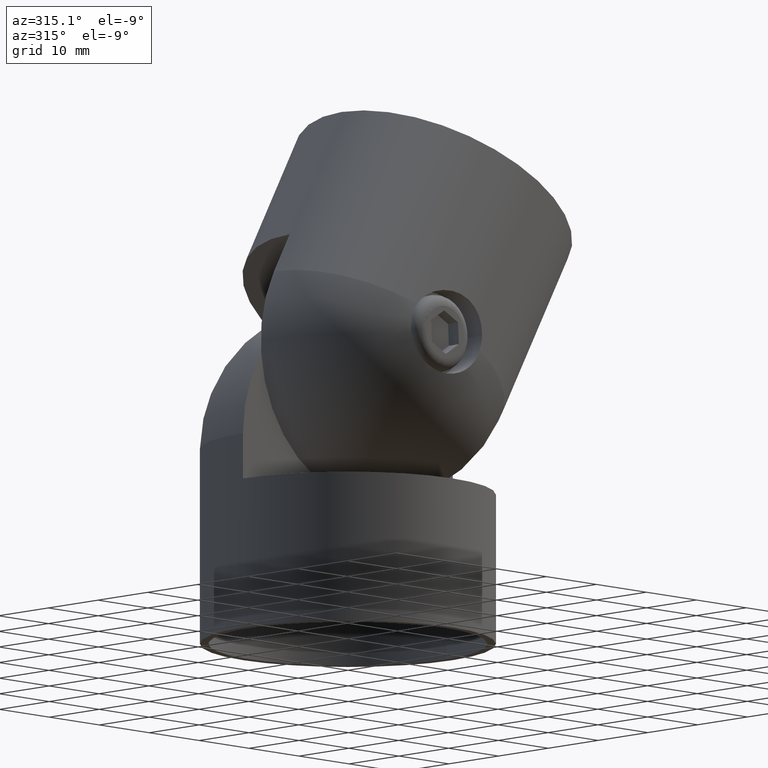
[diagram: clean part render]
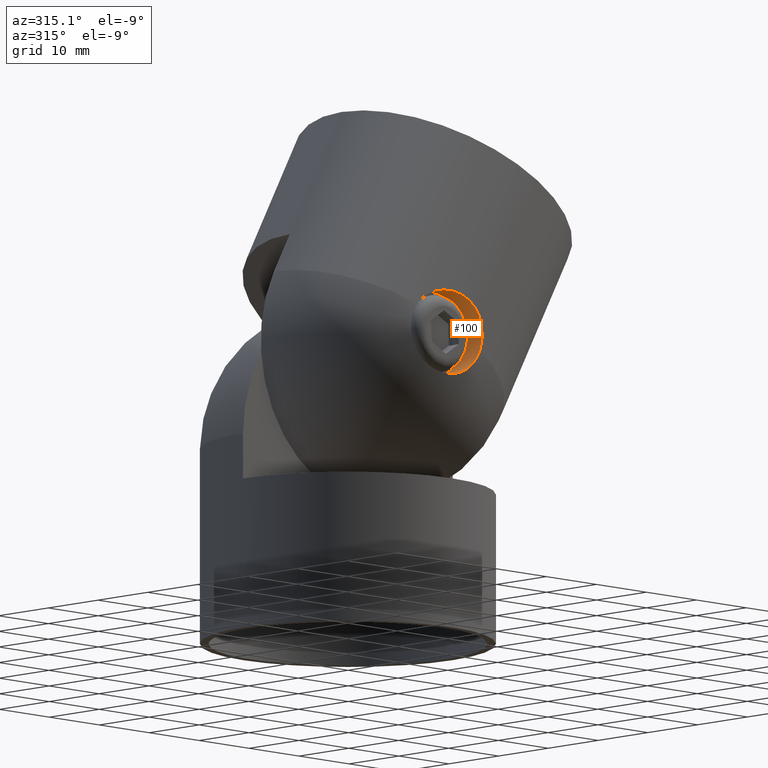
[diagram: same view with one face highlighted and labeled with its STEP entity id]
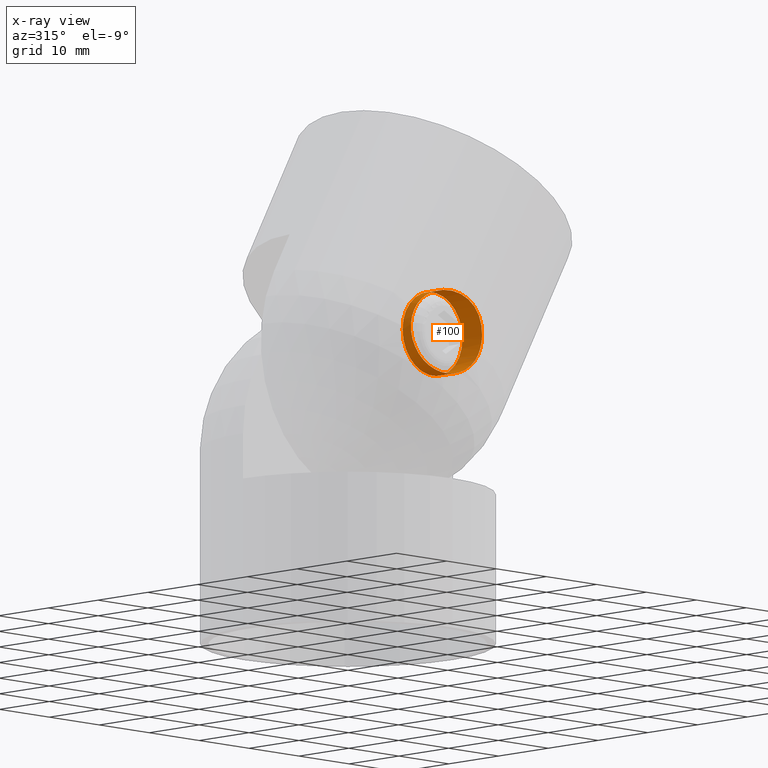
[diagram: x-ray of the same camera — body ghosted, the highlighted face saturated]
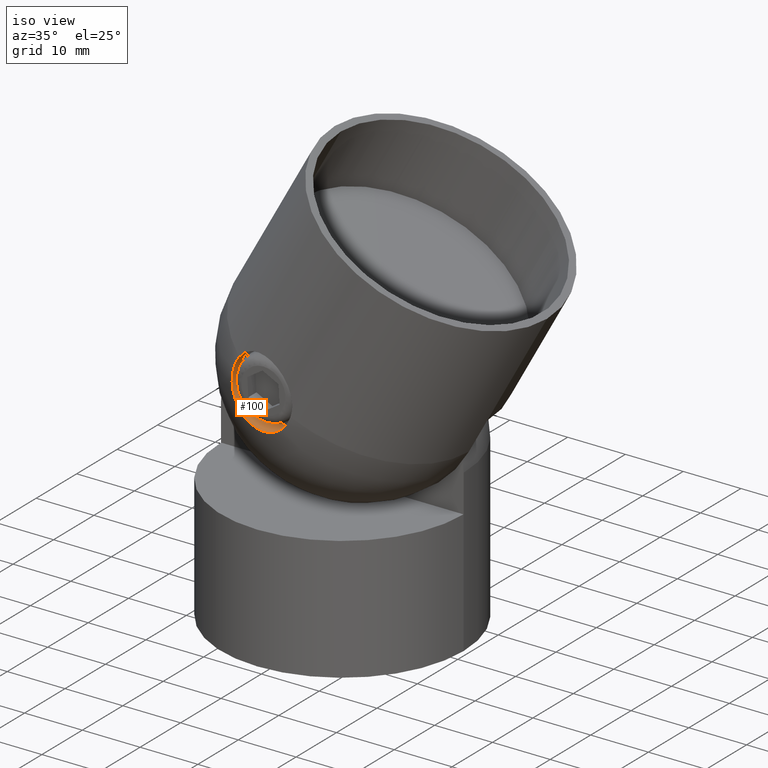
[diagram: same view with one face highlighted and labeled with its STEP entity id]
A machine part, auxiliary view. The second image highlights one B-rep face of the part: STEP entity #100.
The next image is the same camera in x-ray: the body ghosted, the highlighted face saturated — about 0% of this face is hidden behind the body in this view.
A second angle (iso view) of the same face is appended — the face is thin or edge-on in the first view.
In plain terms, the highlighted cylindrical surface (bore or boss wall) has radius 6 mm, axis along (0, 1, 0).
Its self-contained STEP definition (entity closure, byte-faithful):
#37=B_SPLINE_CURVE_WITH_KNOTS('',3,(#629,#630,#631,#632,#633,#634,#635,
#636,#637,#638,#639,#640,#641,#642,#643,#644,#645,#646,#647,#648,#649,#650,
#651,#652,#653,#654,#655,#656,#657,#658,#659,#660,#661,#662,#663,#664),
 .UNSPECIFIED.,.F.,.F.,(4,2,2,2,2,2,2,2,2,2,2,2,2,2,2,2,2,4),(0.,0.0624999999999983,
0.124999999999997,0.187499999999995,0.218749999999995,0.249999999999994,
0.312499999999995,0.374999999999995,0.437499999999996,0.499999999999996,
0.562499999999997,0.624999999999997,0.687499999999998,0.749999999999998,
0.812499999999999,0.874999999999999,0.9375,1.),.UNSPECIFIED.);
#38=B_SPLINE_CURVE_WITH_KNOTS('',3,(#688,#689,#690,#691,#692,#693,#694,
#695,#696,#697,#698,#699,#700,#701,#702,#703,#704,#705,#706,#707,#708,#709,
#710,#711,#712,#713,#714,#715,#716,#717,#718,#719,#720,#721,#722,#723,#724,
#725,#726,#727,#728,#729,#730,#731,#732,#733),.UNSPECIFIED.,.F.,.F.,(4,
2,2,2,2,2,2,2,1,2,2,2,2,2,1,2,2,2,2,2,2,2,2,4),(0.,0.0625000000000008,0.0937500000000012,
0.125000000000002,0.156250000000002,0.187500000000002,0.250000000000003,
0.281250000000003,0.312500000000003,0.343750000000003,0.375000000000003,
0.437500000000003,0.500000000000003,0.531250000000003,0.562500000000003,
0.593750000000003,0.625000000000002,0.687500000000002,0.750000000000002,
0.812500000000002,0.875000000000002,0.906250000000001,0.937500000000001,
1.),.UNSPECIFIED.);
#100=ADVANCED_FACE('',(#179,#180),#116,.F.);
#116=CYLINDRICAL_SURFACE('',#466,6.);
#179=FACE_BOUND('',#208,.T.);
#180=FACE_BOUND('',#209,.T.);
#208=EDGE_LOOP('',(#269,#270));
#209=EDGE_LOOP('',(#271));
#269=ORIENTED_EDGE('',*,*,#360,.T.);
#270=ORIENTED_EDGE('',*,*,#371,.T.);
#271=ORIENTED_EDGE('',*,*,#373,.T.);
#324=VERTEX_POINT('',#665);
#325=VERTEX_POINT('',#666);
#334=VERTEX_POINT('',#738);
#360=EDGE_CURVE('',#324,#325,#37,.T.);
#371=EDGE_CURVE('',#325,#324,#38,.T.);
#373=EDGE_CURVE('',#334,#334,#410,.T.);
#410=CIRCLE('',#464,6.);
#464=AXIS2_PLACEMENT_3D('',#737,#546,#547);
#466=AXIS2_PLACEMENT_3D('',#740,#550,#551);
#546=DIRECTION('',(0.,1.,0.));
#547=DIRECTION('',(1.,0.,0.));
#550=DIRECTION('',(0.,1.,0.));
#551=DIRECTION('',(1.,0.,0.));
#629=CARTESIAN_POINT('',(5.631459728409,-20.8653489895759,40.4945746023323));
#630=CARTESIAN_POINT('',(5.75666263957292,-20.8716751864813,40.8351206335457));
#631=CARTESIAN_POINT('',(5.84927966075009,-20.8814106779172,41.1816129215023));
#632=CARTESIAN_POINT('',(5.97217334124865,-20.9050979137473,41.8860464370092));
#633=CARTESIAN_POINT('',(6.00241000642689,-20.9191539209705,42.2462229736764));
#634=CARTESIAN_POINT('',(5.99728861412691,-20.9474947615892,42.9688241654843));
#635=CARTESIAN_POINT('',(5.96239635984274,-20.9614995982135,43.3251279627115));
#636=CARTESIAN_POINT('',(5.86298043960235,-20.9788641969445,43.8524205151118));
#637=CARTESIAN_POINT('',(5.82194677779763,-20.9840415079581,44.0269834222621));
#638=CARTESIAN_POINT('',(5.72373654802991,-20.9925284310584,44.3736734750153));
#639=CARTESIAN_POINT('',(5.66623615079967,-20.9958376895464,44.5464762041335));
#640=CARTESIAN_POINT('',(5.47252121918615,-21.0017990043582,45.0512485318773));
#641=CARTESIAN_POINT('',(5.31476345190341,-21.000598763803,45.3723973435805));
#642=CARTESIAN_POINT('',(4.94318591321037,-20.9834675111546,45.984518010169));
#643=CARTESIAN_POINT('',(4.72657250828857,-20.9672102843819,46.2782426999328));
#644=CARTESIAN_POINT('',(4.25052106428911,-20.9168328430235,46.8149093762983));
#645=CARTESIAN_POINT('',(3.99128339334834,-20.8829008238498,47.0590604526968));
#646=CARTESIAN_POINT('',(3.43142633380005,-20.795336400612,47.4997984552781));
#647=CARTESIAN_POINT('',(3.12835200103574,-20.7411091383705,47.6970840912145));
#648=CARTESIAN_POINT('',(2.50429854253357,-20.6160323836362,48.0288230362582));
#649=CARTESIAN_POINT('',(2.18103782817776,-20.5449206903265,48.1655856966375));
#650=CARTESIAN_POINT('',(1.51234249240526,-20.38627458477,48.3818983435322));
#651=CARTESIAN_POINT('',(1.16765320028025,-20.2988023724791,48.4604778378069));
#652=CARTESIAN_POINT('',(0.481195715439217,-20.1159427199808,48.5557030986054));
#653=CARTESIAN_POINT('',(0.136274713514892,-20.0198157685276,48.5734954000375));
#654=CARTESIAN_POINT('',(-0.557811640479396,-19.8212223131951,48.5490984236191));
#655=CARTESIAN_POINT('',(-0.902990938848728,-19.7198857249485,48.5066174801506));
#656=CARTESIAN_POINT('',(-1.57579679874316,-19.5216727210352,48.3645754469741));
#657=CARTESIAN_POINT('',(-1.90578549650478,-19.4240937355474,48.2649764551603));
#658=CARTESIAN_POINT('',(-2.55366217903294,-19.2369299804915,48.0056396152885));
#659=CARTESIAN_POINT('',(-2.86698294285115,-19.1487462732105,47.8472133645263));
#660=CARTESIAN_POINT('',(-3.45906286212986,-18.9920832196689,47.4799011524967));
#661=CARTESIAN_POINT('',(-3.74014421649671,-18.9229044521093,47.2701491295823));
#662=CARTESIAN_POINT('',(-4.2710199794788,-18.8087246193045,46.7941246643598));
#663=CARTESIAN_POINT('',(-4.51801076240652,-18.7645085770833,46.5296847825258));
#664=CARTESIAN_POINT('',(-4.74003931256345,-18.7364209980224,46.243590397877));
#665=CARTESIAN_POINT('',(5.631459728409,-20.8653489895759,40.4945746023323));
#666=CARTESIAN_POINT('',(-4.74003931256345,-18.7364209980224,46.243590397877));
#688=CARTESIAN_POINT('',(-4.74003931256345,-18.7364209980224,46.243590397877));
#689=CARTESIAN_POINT('',(-5.005064644211,-18.7028941387489,45.9020926079737));
#690=CARTESIAN_POINT('',(-5.23184163219399,-18.6778158803472,45.5345832871917));
#691=CARTESIAN_POINT('',(-5.51291221967704,-18.653412515995,44.9431183316053));
#692=CARTESIAN_POINT('',(-5.59616996048597,-18.6475614948799,44.7398523277047));
#693=CARTESIAN_POINT('',(-5.73867408234116,-18.6406073518014,44.3298571190422));
#694=CARTESIAN_POINT('',(-5.79850826916706,-18.6394503151159,44.1219487728855));
#695=CARTESIAN_POINT('',(-5.89556832081584,-18.6417326806936,43.7003685760937));
#696=CARTESIAN_POINT('',(-5.93279521080218,-18.6451718874564,43.4866969868107));
#697=CARTESIAN_POINT('',(-5.98406281690465,-18.6567564359478,43.0534429876172));
#698=CARTESIAN_POINT('',(-5.99789461105143,-18.6649359373591,42.8339728570368));
#699=CARTESIAN_POINT('',(-6.00353508915382,-18.6959077076164,42.1830169038974));
#700=CARTESIAN_POINT('',(-5.96071855160726,-18.7251768462812,41.753438787704));
#701=CARTESIAN_POINT('',(-5.82637532168242,-18.7818791041821,41.1156725959658));
#702=CARTESIAN_POINT('',(-5.76956006137031,-18.8029858917621,40.9040042710392));
#703=CARTESIAN_POINT('',(-5.63506954171748,-18.8484476613195,40.4931116407023));
#704=CARTESIAN_POINT('',(-5.47926940522332,-18.8973734990367,40.0920035052531));
#705=CARTESIAN_POINT('',(-5.28166850589968,-18.9530125793125,39.7100778317259));
#706=CARTESIAN_POINT('',(-5.06284015681443,-19.0120183911821,39.3378879257667));
#707=CARTESIAN_POINT('',(-4.94240527689543,-19.0432974956123,39.1562933683699));
#708=CARTESIAN_POINT('',(-4.55557273181202,-19.14043897895,38.6364684204424));
#709=CARTESIAN_POINT('',(-4.25885370320439,-19.2107917553116,38.3170073196767));
#710=CARTESIAN_POINT('',(-3.61257984339421,-19.3567052647037,37.7553697072976));
#711=CARTESIAN_POINT('',(-3.26335610145098,-19.4322767826363,37.5118949174931));
#712=CARTESIAN_POINT('',(-2.70034333887597,-19.5494282999471,37.2027255891626));
#713=CARTESIAN_POINT('',(-2.50514848514202,-19.5892996637663,37.1088084693482));
#714=CARTESIAN_POINT('',(-2.11007366931762,-19.6685587250877,36.9442007630749));
#715=CARTESIAN_POINT('',(-1.70867430954946,-19.747688151343,36.8016912152975));
#716=CARTESIAN_POINT('',(-1.29487619412318,-19.8265587994243,36.7025001720086));
#717=CARTESIAN_POINT('',(-0.874792324807284,-19.9053036711166,36.6252738295638));
#718=CARTESIAN_POINT('',(-0.660316595590544,-19.9448453434472,36.5975809114171));
#719=CARTESIAN_POINT('',(-0.0179129368609776,-20.0613254368003,36.549676777805));
#720=CARTESIAN_POINT('',(0.407882890431866,-20.1359759171494,36.5636371156888));
#721=CARTESIAN_POINT('',(1.25456572104934,-20.2795325505563,36.6820764263793));
#722=CARTESIAN_POINT('',(1.67835856986813,-20.34884355732,36.7886251015775));
#723=CARTESIAN_POINT('',(2.48173525313477,-20.4753821346572,37.0855488788088));
#724=CARTESIAN_POINT('',(2.86607818490479,-20.5334512912254,37.2759058432336));
#725=CARTESIAN_POINT('',(3.59845622054216,-20.6390059324004,37.7442081573699));
#726=CARTESIAN_POINT('',(3.9354492690296,-20.6848825654918,38.0155126076742));
#727=CARTESIAN_POINT('',(4.39264877617737,-20.7430494091096,38.4721970668432));
#728=CARTESIAN_POINT('',(4.53727273037314,-20.7606969525701,38.6330030024096));
#729=CARTESIAN_POINT('',(4.81043861181969,-20.7924196293465,38.9723513140356));
#730=CARTESIAN_POINT('',(4.93840014628039,-20.806415146589,39.1504467743903));
#731=CARTESIAN_POINT('',(5.28862315483804,-20.842027435116,39.6982345636021));
#732=CARTESIAN_POINT('',(5.48098082727711,-20.8577456587123,40.0852790669055));
#733=CARTESIAN_POINT('',(5.631459728409,-20.8653489895759,40.4945746023323));
#737=CARTESIAN_POINT('',(0.,-17.,42.565));
#738=CARTESIAN_POINT('',(6.,-17.,42.565));
#740=CARTESIAN_POINT('',(0.,-21.,42.565));